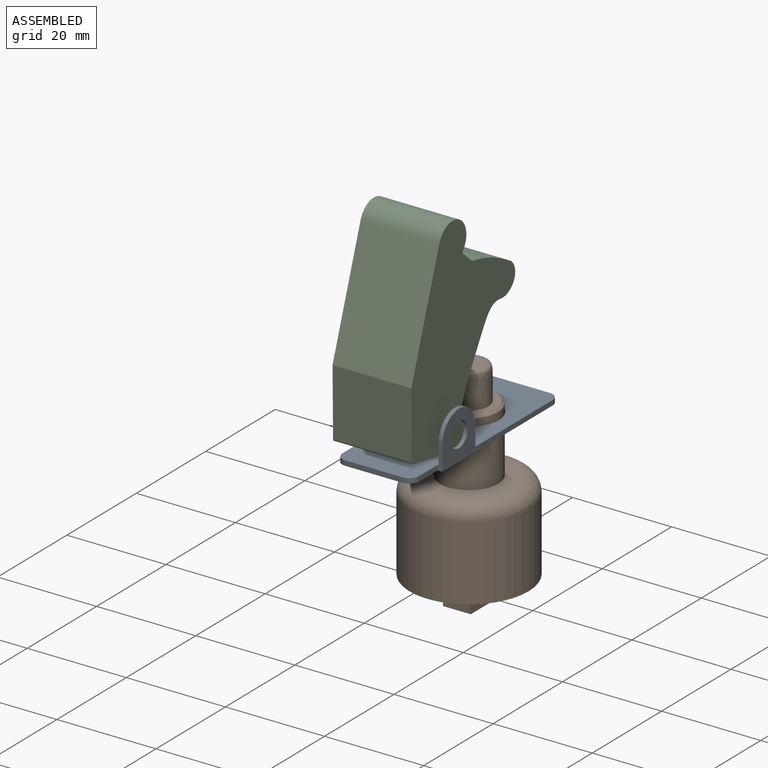
[diagram: assembled view]
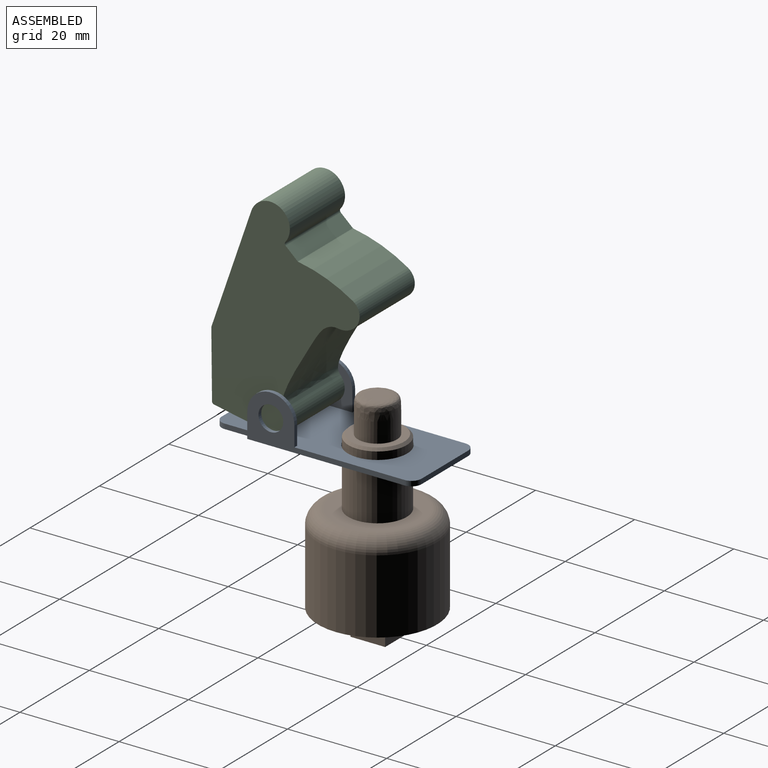
[diagram: assembled view, second angle]
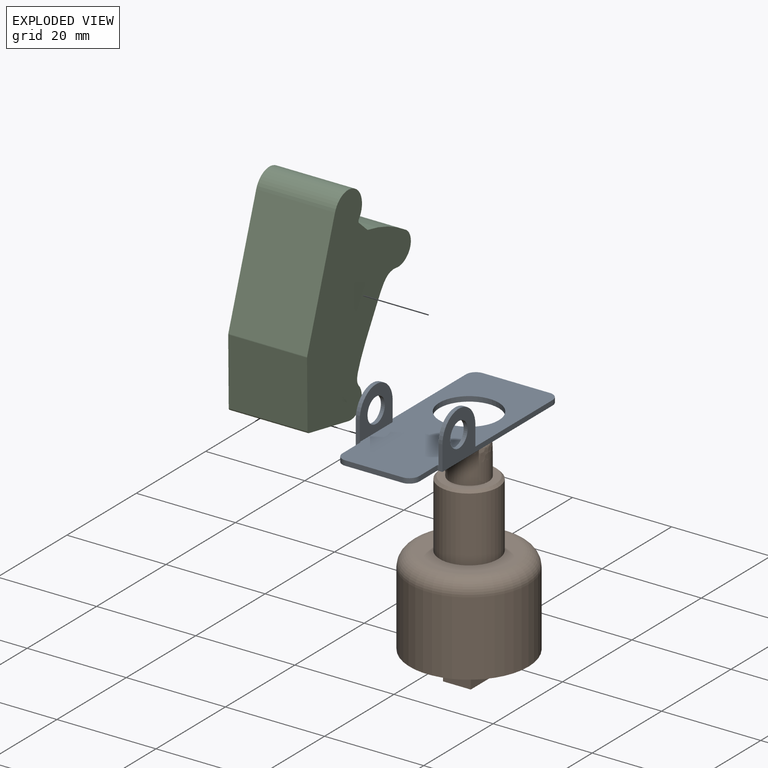
[diagram: exploded view]
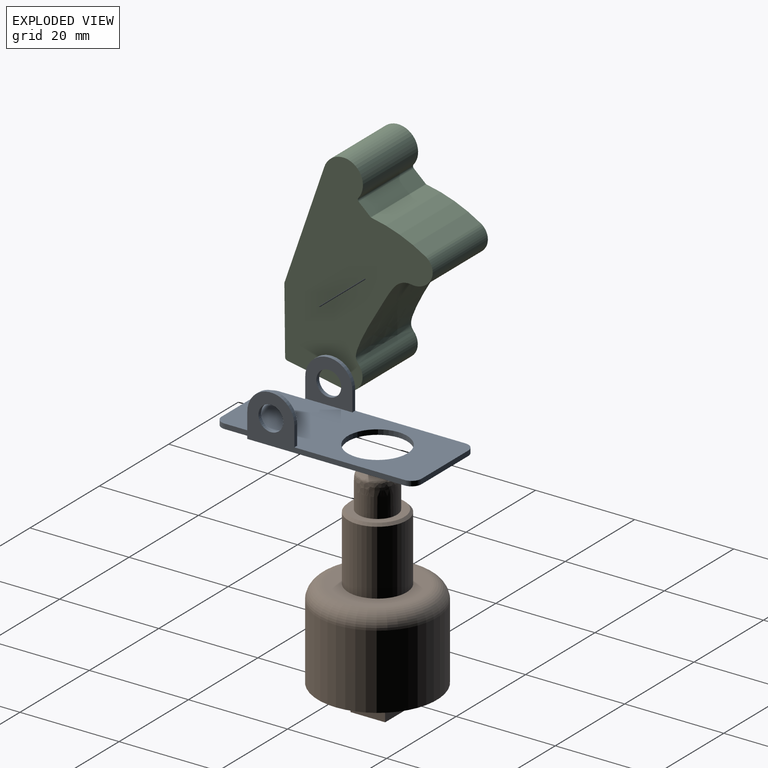
[diagram: exploded view, second angle]
ASSEMBLY  parts=3 mates=2
PART A: 23 faces, bbox 17.5x41x9.8 mm
  f0: plane 41x17.5mm, normal (0,0,1), area 571.3mm2, adj f1,f2,f3,f4,f5,f6,f7,f8
  f1: plane 13.5x1mm, normal (0,1,0), area 13.5mm2, adj f0,f2,f13,f14
  f2: cylinder r=2mm len=2mm, axis (0,0,-1), area 3.1mm2, adj f0,f1,f3,f14
  f3: plane 31.75x9.75mm, normal (-1,0,0), area 85.6mm2, adj f0,f2,f4,f14,f19,f20,f21
  f4: plane 5x1mm, normal (0,-1,0), area 4.2mm2, adj f0,f3,f5,f14,f19,f22
  f5: plane 5.25x1mm, normal (-1,0,0), area 5.2mm2, adj f0,f4,f6,f14
  f6: cylinder r=2mm len=2mm, axis (0,0,-1), area 3.1mm2, adj f0,f5,f7,f14
  f7: plane 11.5x1mm, normal (0,-1,0), area 11.5mm2, adj f0,f6,f8,f14
  f8: cylinder r=2mm len=2mm, axis (0,0,-1), area 3.1mm2, adj f0,f7,f9,f14
  f9: plane 5.25x1mm, normal (1,0,0), area 5.2mm2, adj f0,f8,f10,f14
  f10: plane 5x1mm, normal (0,-1,0), area 4.2mm2, adj f0,f9,f11,f14,f15,f18
  f11: plane 31.75x9.75mm, normal (1,0,0), area 85.6mm2, adj f0,f10,f13,f14,f15,f16,f17
  f12: cylinder r=6mm len=12mm, axis (0,0,-1), area 37.7mm2, adj f0,f14
  f13: cylinder r=2mm len=2mm, axis (0,0,-1), area 3.1mm2, adj f0,f1,f11,f14
  f14: plane 41x17.5mm, normal (0,0,-1), area 586.5mm2, adj f1,f2,f3,f4,f5,f6,f7,f8
  f15: cylinder r=4.75mm len=9.5mm, axis (1,0,0), area 11.9mm2, adj f10,f11,f17,f18
  f16: cylinder r=2.5mm len=5mm, axis (1,0,0), area 12.6mm2, adj f11,f18
  f17: plane 4x0.8mm, normal (0,1,0), area 3.2mm2, adj f0,f11,f15,f18
  f18: plane 9.5x8.75mm, normal (-1,0,0), area 53.8mm2, adj f0,f10,f15,f16,f17
  f19: cylinder r=4.75mm len=9.5mm, axis (-1,0,0), area 11.9mm2, adj f3,f4,f20,f22
  f20: plane 4x0.8mm, normal (0,1,0), area 3.2mm2, adj f0,f3,f19,f22
  f21: cylinder r=2.5mm len=5mm, axis (-1,0,0), area 12.6mm2, adj f3,f22
  f22: plane 9.5x8.75mm, normal (1,0,0), area 53.8mm2, adj f0,f4,f19,f20,f21
PART B: 15 faces, bbox 26x26x43.9 mm
  f0: cylinder r=12mm len=24mm, axis (0,0,-1), area 1131mm2, adj f2,f3
  f1: plane 18x18mm, normal (0,0,1), area 145.1mm2, adj f3,f9
  f2: plane 24x24mm, normal (0,0,-1), area 413.2mm2, adj f0,f4,f5,f6,f7
  f3: torus R=9mm, axis (0,0,1), area 323mm2, adj f0,f1
  f4: plane 7x5.3mm, normal (-1,0,0), area 37.1mm2, adj f2,f5,f7,f8
  f5: plane 5.6x5.3mm, normal (0,1,0), area 29.7mm2, adj f2,f4,f6,f8
  f6: plane 7x5.3mm, normal (1,0,0), area 37.1mm2, adj f2,f5,f7,f8
  f7: plane 5.6x5.3mm, normal (0,-1,0), area 29.7mm2, adj f2,f4,f6,f8
  f8: plane 7x5.6mm, normal (0,0,-1), area 39.2mm2, adj f4,f5,f6,f7
  f9: cylinder r=5.9mm len=13.1mm, axis (0,0,-1), area 485.6mm2, adj f1,f11
  f10: plane 10.8x10.8mm, normal (0,0,1), area 43.3mm2, adj f11,f12
  f11: cone r=5.4mm half-angle=45deg, axis (0,0,-1), area 25.1mm2, adj f9,f10
  f12: cylinder r=3.92mm len=7.84mm, axis (0,0,-1), area 98.5mm2, adj f10,f14
  f13: plane 1.85x1.85mm, normal (0,0,1), area 2.7mm2, adj f14
  f14: bspline ~7.84x7.83mm, area 106.9mm2, adj f12,f13
PART C: 16 faces, bbox 15.9x40.9x26.2 mm
  f0: plane 40.89x26.15mm, normal (1,0,0), area 678.9mm2, adj f1,f2,f3,f4,f5,f6,f7,f8
  f1: plane 15.9x10.97mm, normal (0,-0.94,-0.33), area 184.8mm2, adj f0,f2,f12,f14
  f2: cylinder r=3.21mm len=15.9mm, axis (-1,0,0), area 128mm2, adj f0,f1,f3,f12
  f3: extruded ~20.38x15.9mm, area 349.3mm2, adj f0,f2,f4,f12
  f4: cylinder r=3.75mm len=15.9mm, axis (-1,0,0), area 72.5mm2, adj f0,f3,f5,f12
  f5: cylinder r=3mm len=15.9mm, axis (-1,0,0), area 74.3mm2, adj f0,f4,f6,f12
  f6: cylinder r=30mm len=15.9mm, axis (-1,0,0), area 187.3mm2, adj f0,f5,f7,f12
  f7: extruded ~15.9x0.16mm, area 2.6mm2, adj f0,f6,f8,f12
  f8: plane 15.9x3.21mm, normal (0,0.98,-0.21), area 52.3mm2, adj f0,f7,f9,f12
  f9: cylinder r=0.5mm len=15.9mm, axis (-1,0,0), area 12.1mm2, adj f0,f8,f10,f12
  f10: cylinder r=4mm len=15.9mm, axis (-1,0,0), area 222.4mm2, adj f0,f9,f11,f12
  f11: plane 24.16x15.9mm, normal (0,-0.19,0.98), area 391.2mm2, adj f0,f10,f12,f13
  f12: plane 40.89x26.15mm, normal (-1,0,0), area 678.9mm2, adj f1,f2,f3,f4,f5,f6,f7,f8
  f13: cylinder r=0.5mm len=15.9mm, axis (-1,0,0), area 2.7mm2, adj f0,f11,f12,f15
  f14: cylinder r=0.5mm len=15.9mm, axis (-1,0,0), area 10.9mm2, adj f0,f1,f12,f15
  f15: plane 15.9x11.57mm, normal (0,-0.51,0.86), area 213.8mm2, adj f0,f12,f13,f14
PLACE A t=(-11.78,-17,-7.09)mm
PLACE B t=(-11.78,-10.1,-35.69)mm
PLACE C rot(axis=(1,0,0),60deg) t=(-11.78,-16.92,2.77)mm
MATE revolute C.f2 <-> A.f15  axis (1,0,0) through (-3.83,-25.5,-2.09)mm
MATE fastened B.f12 <-> A.f12  axis (0,0,-1) through (-11.78,-10.1,-4.09)mm
